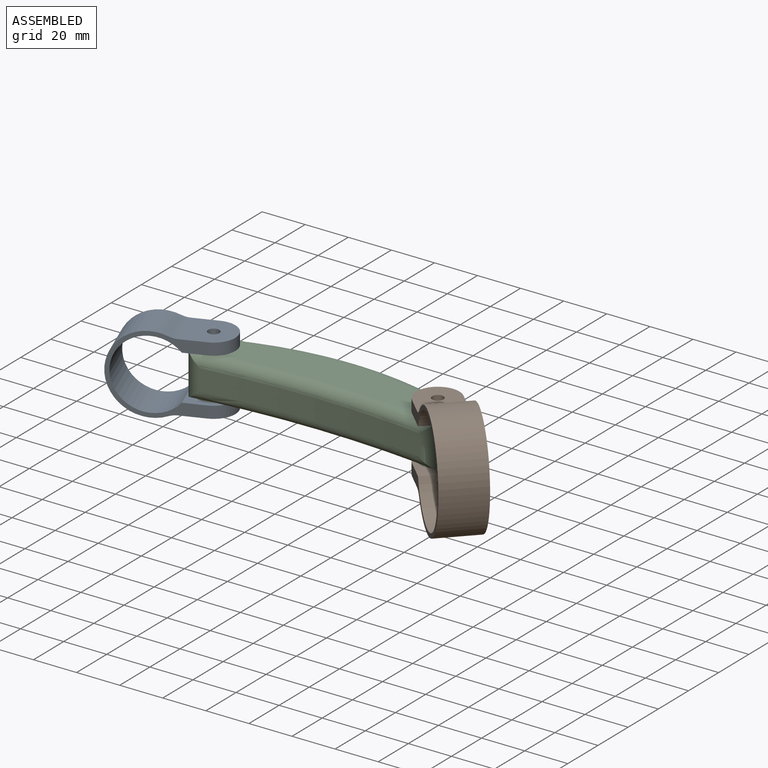
[diagram: assembled view]
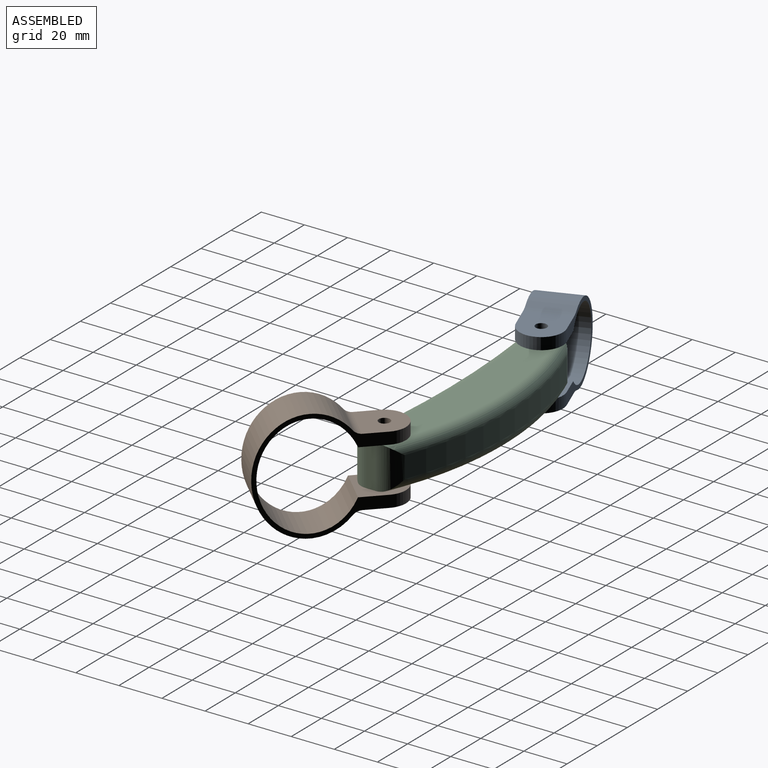
[diagram: assembled view, second angle]
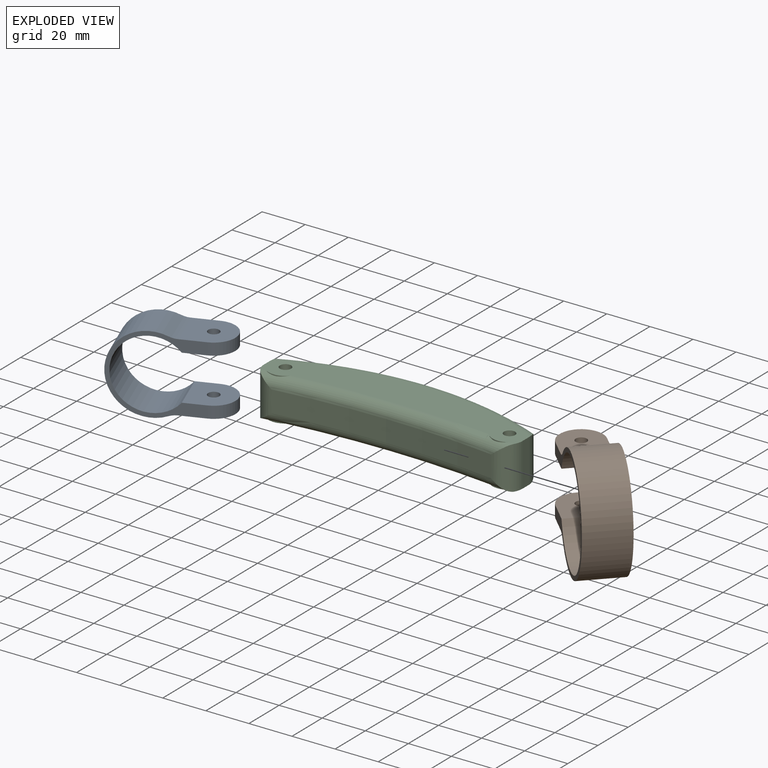
[diagram: exploded view]
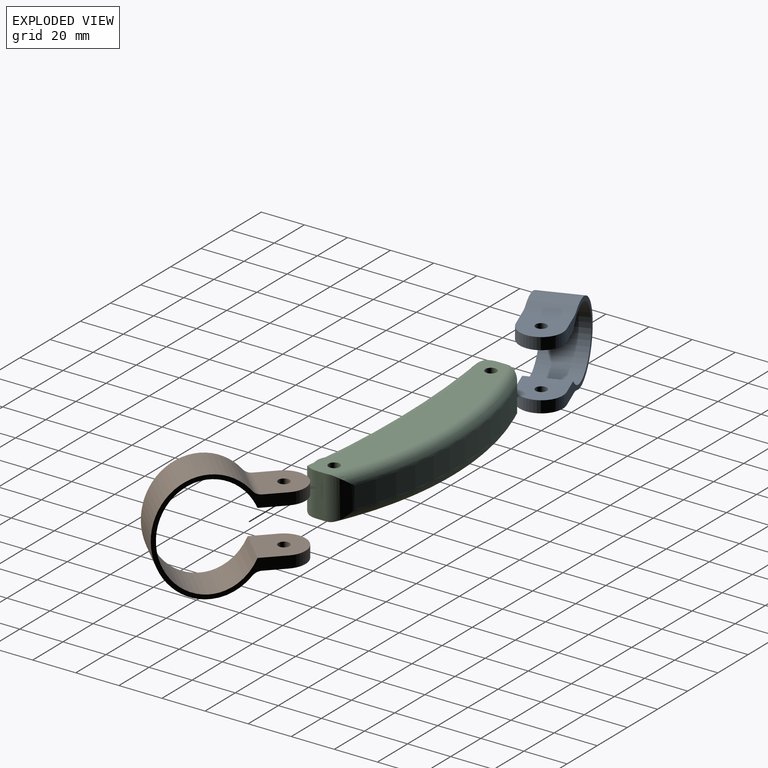
[diagram: exploded view, second angle]
ASSEMBLY  parts=3 mates=2
PART A: 14 faces, bbox 50.4x20x36.3 mm
  f0: cylinder r=10mm len=20mm, axis (0,-1,0), area 78.7mm2, adj f1,f5,f6,f7
  f1: cylinder r=18.15mm len=36.3mm, axis (0,-1,0), area 1426mm2, adj f0,f2,f6,f7
  f2: cylinder r=10mm len=20mm, axis (0,-1,0), area 78.7mm2, adj f1,f3,f6,f7
  f3: plane 21.48x20mm, normal (0,0,-1), area 365.5mm2, adj f2,f6,f7,f8,f9
  f4: cylinder r=16.15mm len=32.3mm, axis (0,-1,0), area 1572.2mm2, adj f6,f7,f10,f13
  f5: plane 21.48x20mm, normal (0,0,1), area 365.5mm2, adj f0,f6,f7,f11,f12
  f6: plane 40.42x36.3mm, normal (0,1,0), area 282mm2, adj f0,f1,f2,f3,f4,f5,f8,f10
  f7: plane 40.42x36.3mm, normal (0,-1,0), area 282mm2, adj f0,f1,f2,f3,f4,f5,f8,f10
  f8: cylinder r=10mm len=20mm, axis (0,0,1), area 172.8mm2, adj f3,f6,f7,f10
  f9: cylinder r=2.6mm len=5.5mm, axis (0,0,1), area 89.8mm2, adj f3,f10
  f10: plane 20x20mm, normal (0,0,1), area 335.8mm2, adj f4,f6,f7,f8,f9
  f11: cylinder r=10mm len=20mm, axis (0,0,1), area 172.8mm2, adj f5,f6,f7,f13
  f12: cylinder r=2.6mm len=5.5mm, axis (0,0,1), area 89.8mm2, adj f5,f13
  f13: plane 20x20mm, normal (0,0,-1), area 335.8mm2, adj f4,f6,f7,f11,f12
PART B: 14 faces, bbox 63.5x20x52.3 mm
  f0: cylinder r=5mm len=20mm, axis (0,-1,0), area 94.3mm2, adj f1,f6,f7,f13
  f1: extruded ~52.16x39.32mm, area 2306mm2, adj f0,f2,f6,f7
  f2: cylinder r=5mm len=20mm, axis (0,-1,0), area 94.3mm2, adj f1,f6,f7,f10
  f3: plane 22.15x20mm, normal (0,0,-1), area 378.8mm2, adj f4,f6,f7,f8,f9
  f4: extruded ~48.22x39.34mm, area 2391.4mm2, adj f3,f5,f6,f7
  f5: plane 22.15x20mm, normal (0,0,1), area 378.8mm2, adj f4,f6,f7,f11,f12
  f6: plane 53.49x52.3mm, normal (0,1,0), area 377.2mm2, adj f0,f1,f2,f3,f4,f5,f8,f10
  f7: plane 53.49x52.3mm, normal (0,-1,0), area 377.2mm2, adj f0,f1,f2,f3,f4,f5,f8,f10
  f8: cylinder r=10mm len=20mm, axis (0,0,-1), area 172.8mm2, adj f3,f6,f7,f10
  f9: cylinder r=2.6mm len=5.5mm, axis (0,0,-1), area 89.8mm2, adj f3,f10
  f10: plane 20x20mm, normal (0,0,1), area 335.8mm2, adj f2,f6,f7,f8,f9
  f11: cylinder r=10mm len=20mm, axis (0,0,-1), area 172.8mm2, adj f5,f6,f7,f13
  f12: cylinder r=2.6mm len=5.5mm, axis (0,0,-1), area 89.8mm2, adj f5,f13
  f13: plane 20x20mm, normal (0,0,-1), area 335.8mm2, adj f0,f6,f7,f11,f12
PART C: 20 faces, bbox 134.3x44.6x20 mm
  f0: torus R=410.16mm, axis (0,0,1), area 839.9mm2, adj f3,f8,f12,f13,f14,f16
  f1: torus R=410.16mm, axis (0,0,1), area 839.9mm2, adj f3,f9,f12,f13,f15,f17
  f2: plane 20x4.13mm, normal (-1,0,0), area 82.6mm2, adj f8,f9,f11,f13
  f3: cylinder r=405.16mm len=101.99mm, axis (0,0,-1), area 1022.6mm2, adj f0,f1,f12,f13
  f4: plane 20x4.13mm, normal (1,0,0), area 82.6mm2, adj f8,f9,f10,f12
  f5: cylinder r=2.6mm len=20mm, axis (0,0,-1), area 326.7mm2, adj f8,f9
  f6: cylinder r=147.25mm len=107.29mm, axis (0,0,-1), area 1098.1mm2, adj f10,f11,f18,f19
  f7: cylinder r=2.6mm len=20mm, axis (0,0,-1), area 326.7mm2, adj f8,f9
  f8: plane 120x23.74mm, normal (0,0,1), area 1836.2mm2, adj f0,f2,f4,f5,f7,f10,f11,f12
  f9: plane 120x23.74mm, normal (0,0,-1), area 1836.2mm2, adj f1,f2,f4,f5,f7,f10,f11,f12
  f10: cylinder r=10mm len=20mm, axis (0,0,-1), area 198.6mm2, adj f4,f6,f8,f9,f18,f19
  f11: cylinder r=10mm len=20mm, axis (0,0,-1), area 198.6mm2, adj f2,f6,f8,f9,f18,f19
  f12: cylinder r=8mm len=20mm, axis (0,0,-1), area 236.2mm2, adj f0,f1,f3,f4,f8,f9
  f13: cylinder r=8mm len=20mm, axis (0,0,-1), area 236.2mm2, adj f0,f1,f2,f3,f8,f9
  f14: cylinder r=8mm len=10.87mm, axis (0,0,-1), area 3.2mm2, adj f0,f8
  f15: cylinder r=8mm len=10.87mm, axis (0,0,-1), area 3.2mm2, adj f1,f9
  f16: cylinder r=8mm len=10.87mm, axis (0,0,-1), area 3.2mm2, adj f0,f8
  f17: cylinder r=8mm len=10.87mm, axis (0,0,-1), area 3.2mm2, adj f1,f9
  f18: torus R=142.25mm, axis (0,0,1), area 931mm2, adj f6,f8,f10,f11
  f19: torus R=142.25mm, axis (0,0,1), area 931mm2, adj f6,f9,f10,f11
PLACE A rot(axis=(0,0,1),20.9deg) t=(-13.68,27.76,6.53)mm
PLACE B rot(axis=(0,0,-1),44.2deg) t=(6.03,47.01,6.53)mm
PLACE C t=(-5.57,9.72,6.53)mm fixed
MATE revolute C.f7 <-> B.f8  axis (0,0,-1) through (46.43,21.72,6.53)mm
MATE revolute C.f5 <-> A.f8  axis (0,0,1) through (-57.57,21.72,26.53)mm
